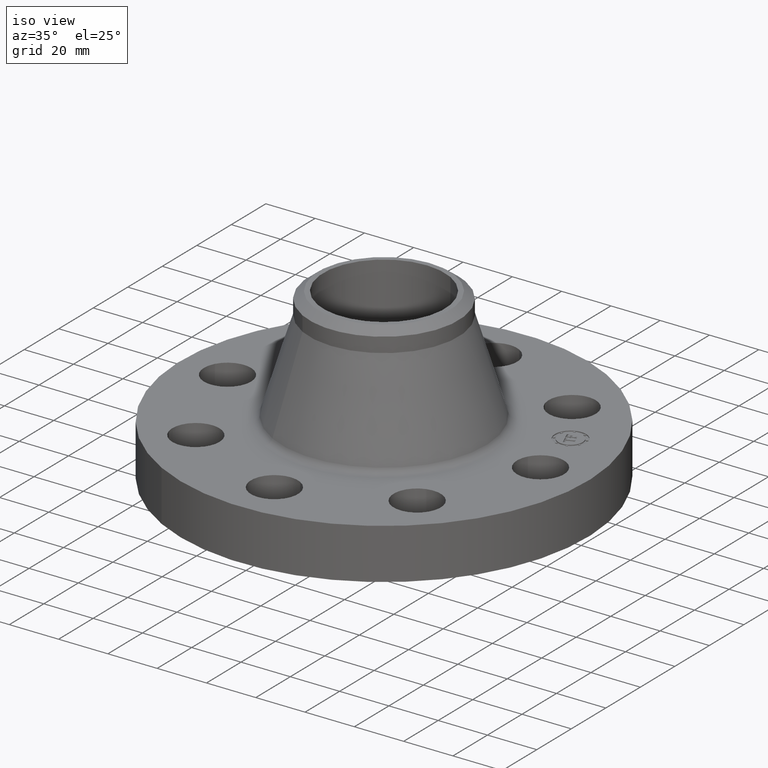
[diagram: clean part render]
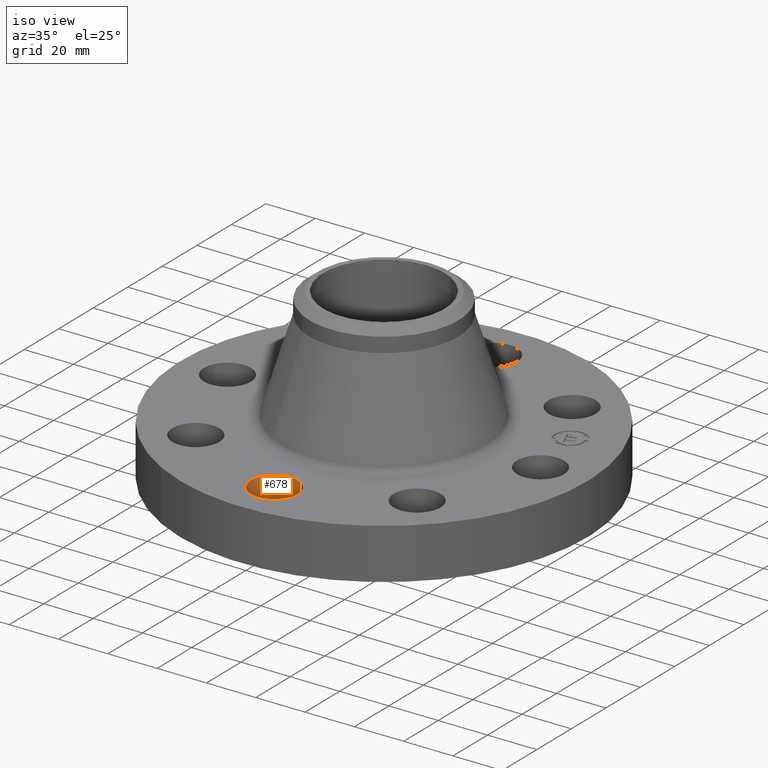
[diagram: same view with one face highlighted and labeled with its STEP entity id]
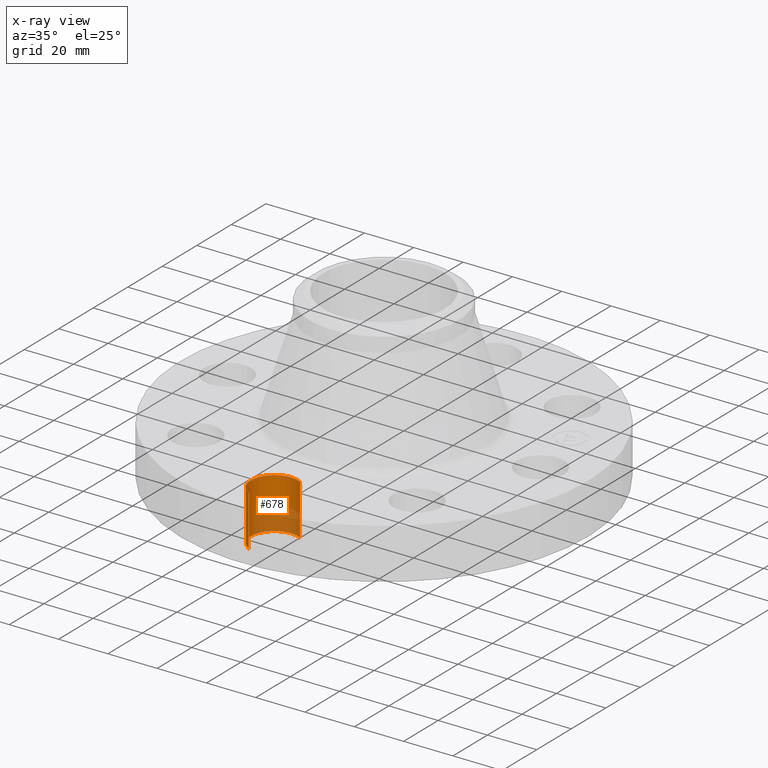
[diagram: x-ray of the same camera — body ghosted, the highlighted face saturated]
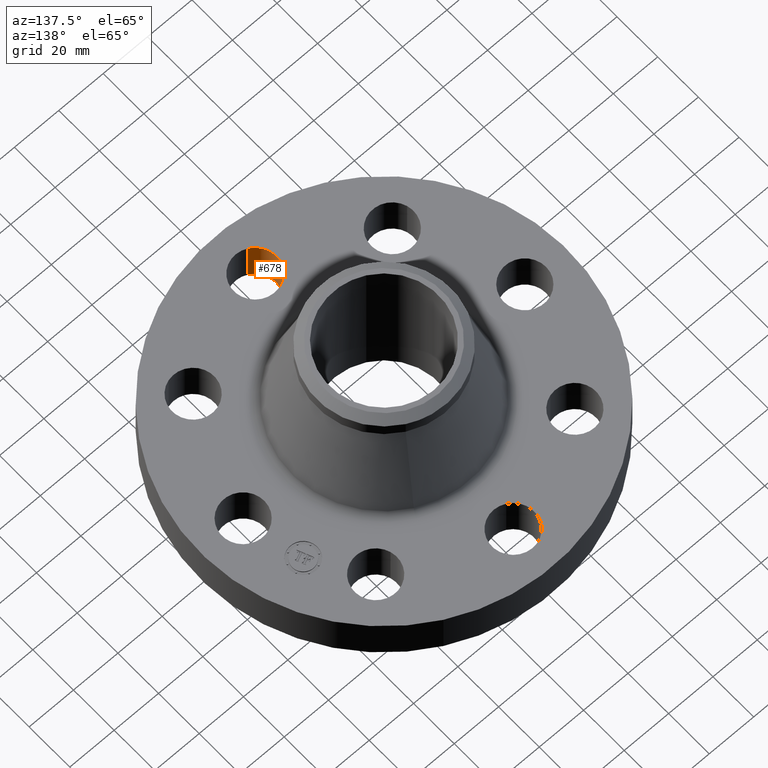
[diagram: same view with one face highlighted and labeled with its STEP entity id]
A machine part, iso view. The second image highlights one B-rep face of the part: STEP entity #678.
The next image is the same camera in x-ray: the body ghosted, the highlighted face saturated — about 37% of this face is hidden behind the body in this view.
A second angle (auxiliary view) of the same face is appended — the face is thin or edge-on in the first view.
In plain terms, the highlighted cylindrical surface (edge-blend (fillet) strip) has radius 9.525 mm, axis along (0, -0, -1).
Its self-contained STEP definition (entity closure, byte-faithful):
#210=AXIS2_PLACEMENT_3D('Circle Axis2P3D',#208,#209,$) ;
#380=AXIS2_PLACEMENT_3D('Circle Axis2P3D',#378,#379,$) ;
#670=AXIS2_PLACEMENT_3D('Cylinder Axis2P3D',#667,#668,#669) ;
#203=CARTESIAN_POINT('Vertex',(0.179784576973,-2.17090653928,0.)) ;
#205=CARTESIAN_POINT('Vertex',(-0.179784576973,-2.82909346075,0.)) ;
#208=CARTESIAN_POINT('Axis2P3D Location',(1.28118688012E-011,-2.50000000002,0.)) ;
#378=CARTESIAN_POINT('Axis2P3D Location',(-3.49676543189E-017,-2.50000000002,0.810000000003)) ;
#382=CARTESIAN_POINT('Vertex',(-0.179784576973,-2.82909346072,0.810000000003)) ;
#384=CARTESIAN_POINT('Vertex',(0.179784576978,-2.1709065393,0.809999999988)) ;
#643=CARTESIAN_POINT('Line Origine',(0.179784576978,-2.1709065393,0.405000000001)) ;
#648=CARTESIAN_POINT('Line Origine',(-0.179784576978,-2.82909346072,0.405000000001)) ;
#667=CARTESIAN_POINT('Axis2P3D Location',(1.53080849894E-016,-2.50000000001,0.806062992129)) ;
#209=DIRECTION('Axis2P3D Direction',(0.,0.,-0.0393700787402)) ;
#379=DIRECTION('Axis2P3D Direction',(0.,0.,-0.0393700787402)) ;
#644=DIRECTION('Vector Direction',(0.,0.,-0.0393700787402)) ;
#649=DIRECTION('Vector Direction',(0.,0.,-0.0393700787402)) ;
#668=DIRECTION('Axis2P3D Direction',(0.,-0.,-0.0393700787402)) ;
#669=DIRECTION('Axis2P3D XDirection',(-0.0188750212049,-0.0345504945626,0.)) ;
#645=VECTOR('Line Direction',#644,0.0393700787402) ;
#650=VECTOR('Line Direction',#649,0.0393700787402) ;
#673=ORIENTED_EDGE('',*,*,#652,.F.) ;
#674=ORIENTED_EDGE('',*,*,#212,.T.) ;
#675=ORIENTED_EDGE('',*,*,#647,.T.) ;
#676=ORIENTED_EDGE('',*,*,#386,.F.) ;
#678=ADVANCED_FACE('PartBody',(#677),#671,.F.) ;
#211=CIRCLE('generated circle',#210,0.375000000021) ;
#381=CIRCLE('generated circle',#380,0.374999999988) ;
#671=CYLINDRICAL_SURFACE('generated cylinder',#670,0.375000000002) ;
#212=EDGE_CURVE('',#206,#204,#211,.T.) ;
#386=EDGE_CURVE('',#383,#385,#381,.T.) ;
#647=EDGE_CURVE('',#204,#385,#646,.F.) ;
#652=EDGE_CURVE('',#206,#383,#651,.F.) ;
#672=EDGE_LOOP('',(#673,#674,#675,#676)) ;
#677=FACE_OUTER_BOUND('',#672,.T.) ;
#646=LINE('Line',#643,#645) ;
#651=LINE('Line',#648,#650) ;
#204=VERTEX_POINT('',#203) ;
#206=VERTEX_POINT('',#205) ;
#383=VERTEX_POINT('',#382) ;
#385=VERTEX_POINT('',#384) ;